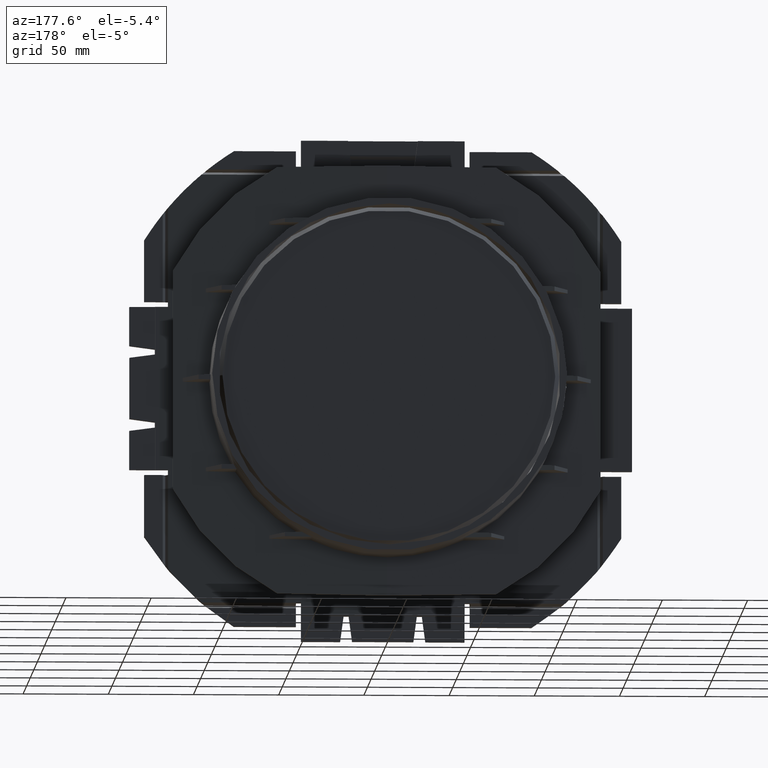
[diagram: clean part render]
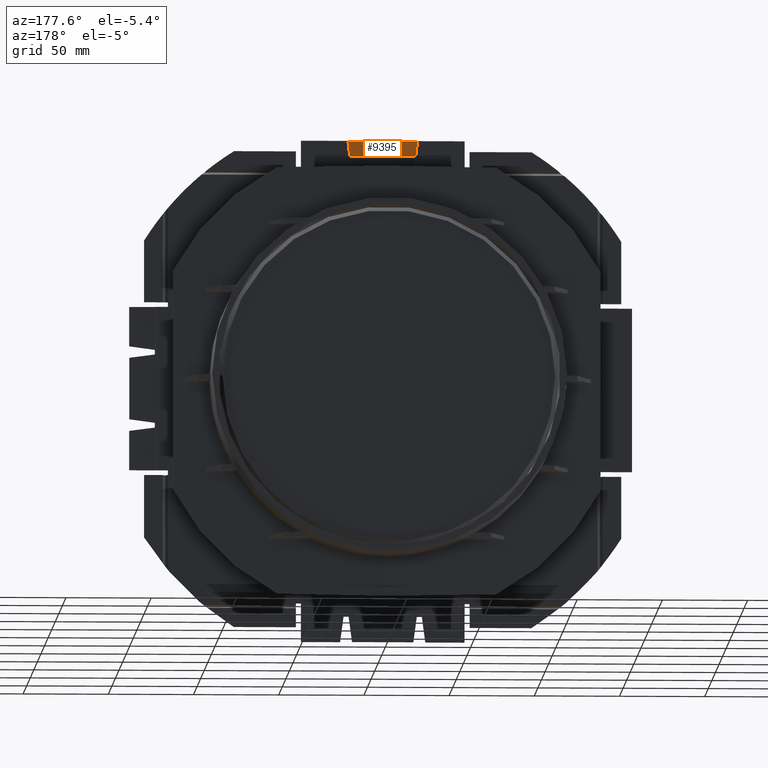
[diagram: same view with one face highlighted and labeled with its STEP entity id]
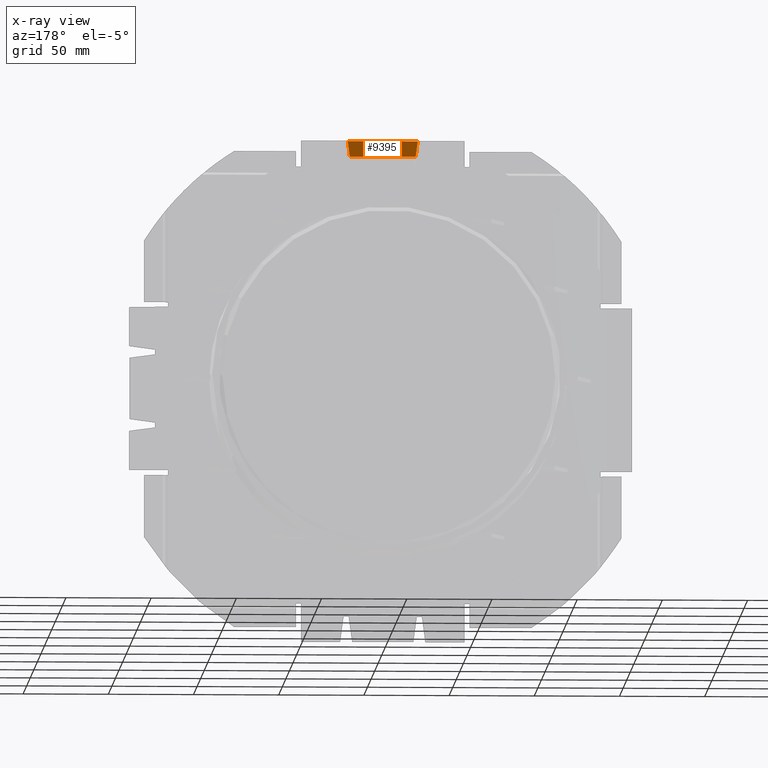
[diagram: x-ray of the same camera — body ghosted, the highlighted face saturated]
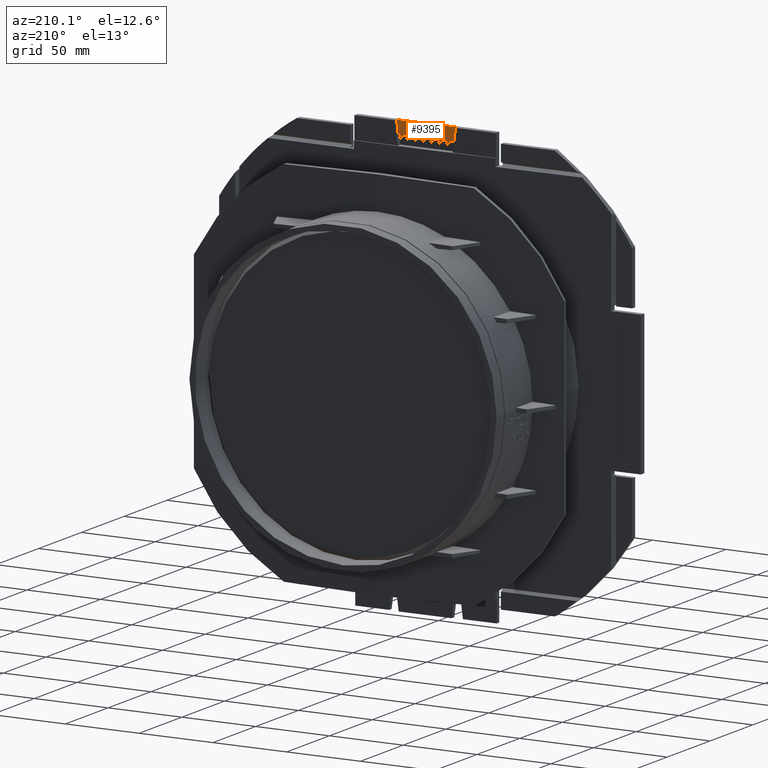
[diagram: same view with one face highlighted and labeled with its STEP entity id]
A machine part, auxiliary view. The second image highlights one B-rep face of the part: STEP entity #9395.
The next image is the same camera in x-ray: the body ghosted, the highlighted face saturated — about 0% of this face is hidden behind the body in this view.
A second angle (auxiliary view) of the same face is appended — the face is thin or edge-on in the first view.
In plain terms, the highlighted planar face has unit normal (0, -1, 0).
Its self-contained STEP definition (entity closure, byte-faithful):
#1087=FACE_OUTER_BOUND('',#1589,.T.);
#1589=EDGE_LOOP('',(#7967,#7968,#7969,#7970));
#1704=LINE('',#12565,#2563);
#2200=LINE('',#16661,#3059);
#2223=LINE('',#17030,#3082);
#2447=LINE('',#18214,#3306);
#2563=VECTOR('',#10268,10.);
#3059=VECTOR('',#11586,10.);
#3082=VECTOR('',#11623,10.);
#3306=VECTOR('',#12265,10.);
#3423=VERTEX_POINT('',#12562);
#3424=VERTEX_POINT('',#12564);
#4081=VERTEX_POINT('',#16660);
#4096=VERTEX_POINT('',#17029);
#4292=EDGE_CURVE('',#3424,#3423,#1704,.T.);
#5151=EDGE_CURVE('',#3423,#4081,#2200,.F.);
#5189=EDGE_CURVE('',#4096,#3424,#2223,.F.);
#5476=EDGE_CURVE('',#4096,#4081,#2447,.T.);
#7967=ORIENTED_EDGE('',*,*,#4292,.T.);
#7968=ORIENTED_EDGE('',*,*,#5151,.T.);
#7969=ORIENTED_EDGE('',*,*,#5476,.F.);
#7970=ORIENTED_EDGE('',*,*,#5189,.T.);
#8443=PLANE('',#10116);
#9395=ADVANCED_FACE('',(#1087),#8443,.F.);
#10116=AXIS2_PLACEMENT_3D('',#18215,#12266,#12267);
#10268=DIRECTION('',(1.,0.,6.12323399573677E-17));
#11586=DIRECTION('',(0.132163720091018,0.,0.991227900682635));
#11623=DIRECTION('',(0.132163720091018,0.,-0.991227900682635));
#12265=DIRECTION('',(1.,0.,-1.08314441426845E-16));
#12266=DIRECTION('center_axis',(0.,-1.,0.));
#12267=DIRECTION('ref_axis',(-1.,0.,-6.12323399573677E-17));
#12562=CARTESIAN_POINT('',(20.5176095375405,-86.5,146.2));
#12564=CARTESIAN_POINT('',(-20.5176095375404,-86.5,146.2));
#12565=CARTESIAN_POINT('',(10.25,-86.5,146.2));
#16660=CARTESIAN_POINT('',(19.3176095375405,-86.5,137.2));
#16661=CARTESIAN_POINT('',(20.5173019473651,-86.5,146.197693073685));
#17029=CARTESIAN_POINT('',(-19.3176095375404,-86.5,137.2));
#17030=CARTESIAN_POINT('',(-19.159223344745,-86.5,136.012103554034));
#18214=CARTESIAN_POINT('',(20.5,-86.5,137.2));
#18215=CARTESIAN_POINT('Origin',(20.5,-86.5,146.2));